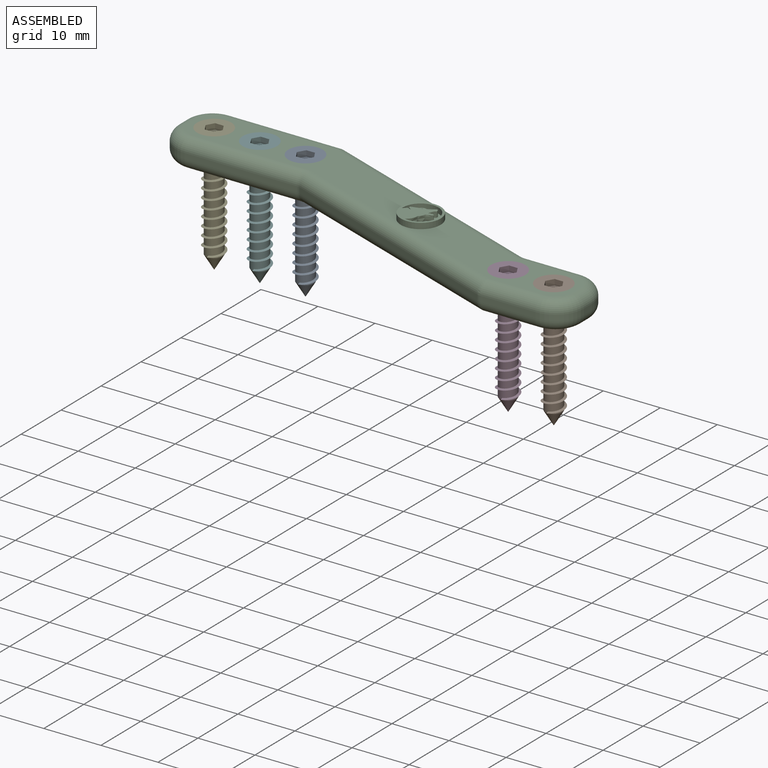
[diagram: assembled view]
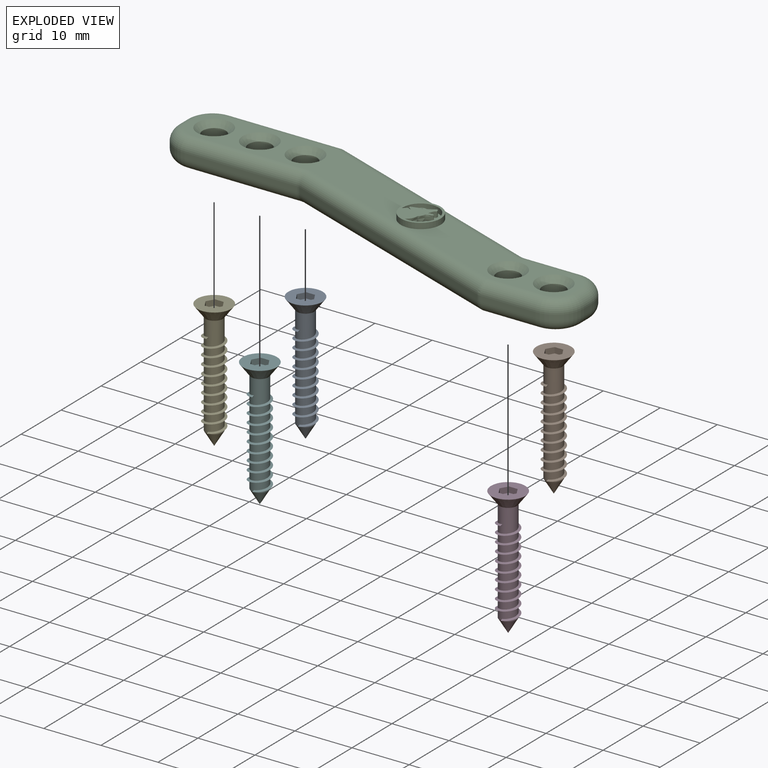
[diagram: exploded view]
GUIDED TOUR — MATED ASSEMBLY (Onshape document 33f1b2299c7d34838d41f400, AutoMate assembly 33f1b2299c7d34838d41f400_60aebbdf857f3bd3de5307ba_5d82a7df3eaacb39e897d084_default)

This assembly has 6 components, labeled P0..P5 below (a component is one placed occurrence of a part; the same part can appear more than once), held together by 5 mates. A mate is a constraint between two components; its type names the relative motion it leaves free:
  SLIDER — leaves translation along the listed axis free.
Axis/direction vectors are unit vectors and 'through' points are millimeter coordinates, both in the assembly's world frame.

MATES
  1. SLIDER "Slider 1": P1 <-> P2, axis (0.000, 0.000, 1.000) through (35.70, -7.64, -9.40) mm
  2. SLIDER "Slider 1": P0 <-> P2, axis (0.000, 0.000, 1.000) through (-18.58, 7.75, -9.40) mm
  3. SLIDER "Slider 1": P3 <-> P2, axis (0.000, 0.000, 1.000) through (27.70, -7.64, -9.40) mm
  4. SLIDER "Slider 1": P4 <-> P2, axis (0.000, 0.000, 1.000) through (-34.58, 7.75, -9.40) mm
  5. SLIDER "Slider 1": P5 <-> P2, axis (0.000, 0.000, 1.000) through (-26.58, 7.75, -9.40) mm

ASSEMBLY ORDER
  1. P2 — the base component [order heuristic]
  2. P0 [order heuristic]
  3. P1 [order heuristic]
  4. P3 [order heuristic]
  5. P4 [order heuristic]
  6. P5 [order heuristic]
Order-tag legend:
  [order heuristic] — this assembly is geometrically interlocked (no collision-free removal order exists), so components are listed in mate-graph order; insertion feasibility is not verified.

Of the 6 components, 1 carries the full construction recipe — the FeatureScript program that regenerates the part's solid from scratch; the rest are supplied as boundary geometry only.
Each toured component is shown spotlighted twice — in the assembled view, then in the exploded view, where a leader line traces a displaced component back to its assembled socket (saturated green if recipe-attached, orange if geometry-only; every other component desaturated gray) — followed by its recipe or geometry summary and the mates that hold it.
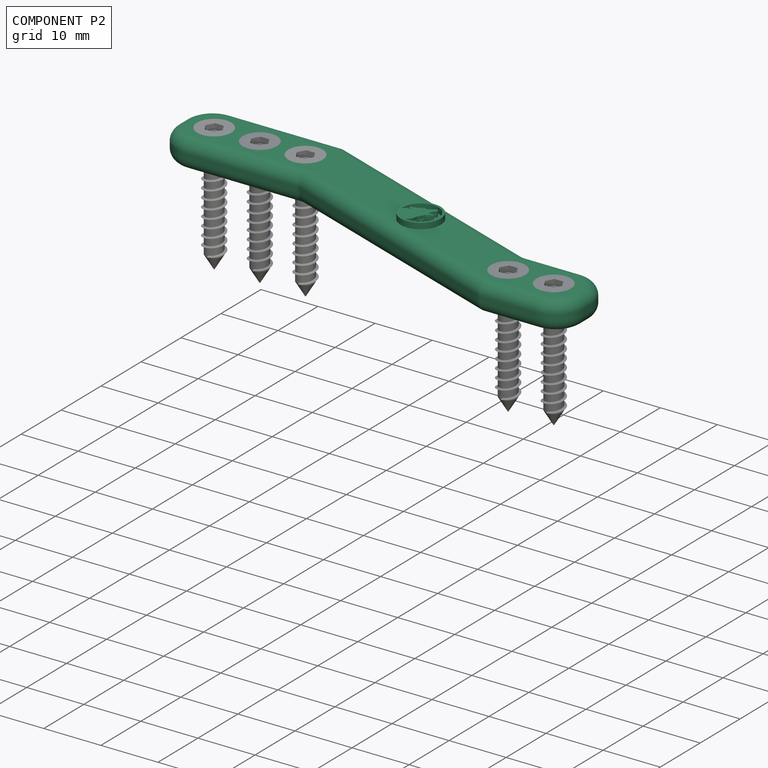
[diagram: component P2 — assembled]
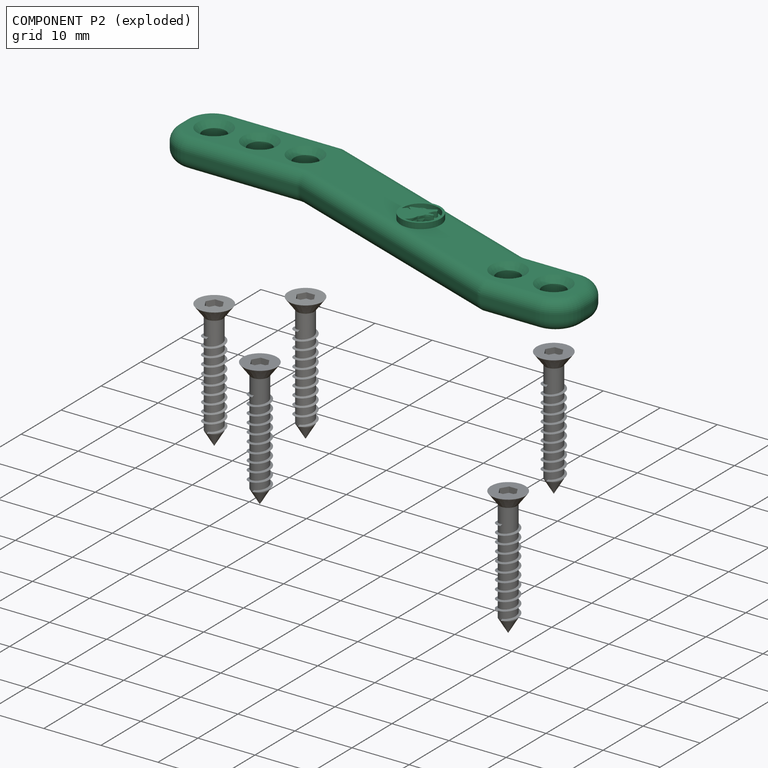
[diagram: component P2 — exploded]
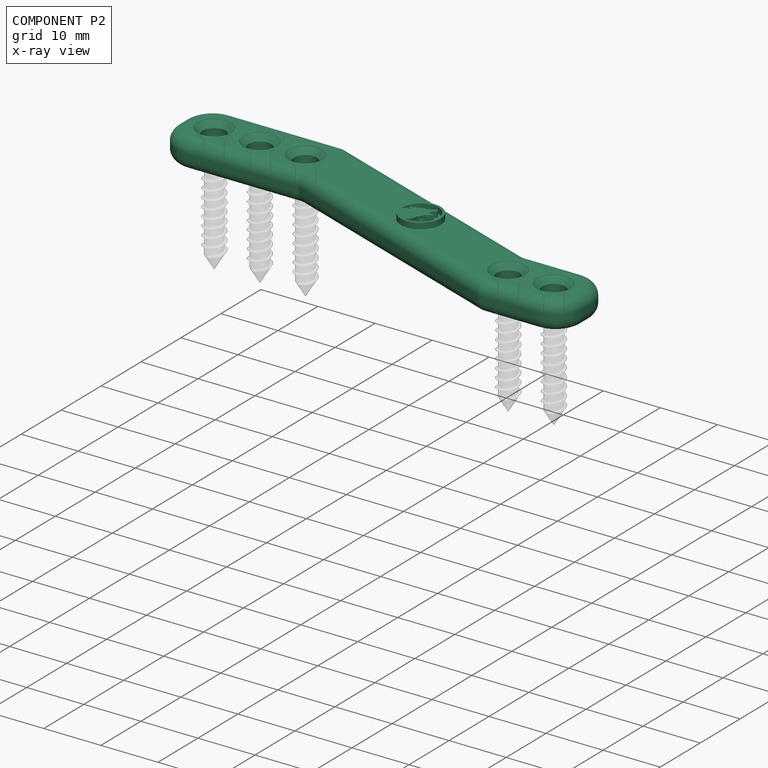
[diagram: component P2 — x-ray view]
COMPONENT P2 — recipe-attached (CADFS 00302835, mesh-verified: the recipe's output STEP matches this component's geometry to below the mesh-comparison resolution (tessellation chordal tolerance ~0.13 mm)).
Held by: SLIDER mate "Slider 1" to P1; SLIDER mate "Slider 1" to P0; SLIDER mate "Slider 1" to P3; SLIDER mate "Slider 1" to P4; SLIDER mate "Slider 1" to P5.
Construction recipe (FeatureScript — the CAD program that rebuilds this solid; sketch coordinates are in the units given by the * unit suffixes, e.g. mm):

FeatureScript 1511;
import(path : "onshape/std/geometry.fs", version : "1511.0");
import(path : "onshape/std/common.fs", version : "1511.0");
const mm = millimeter;
const VERTEX = EntityType.VERTEX;
const EDGE = EntityType.EDGE;
const FACE = EntityType.FACE;
const BODY = EntityType.BODY;
function v(x, y){return vector(x, y);}
function OD(order){return orderDisambiguation(order);}
function OSD(set){return originalSetDisambiguation(set);}
function TD(topology){return topologyDisambiguation(topology);}
function TDD(query){return trueDependencyDisambiguation(query);}
function sQuery(a, b, c) {return sketchEntityQuery(a, b, c);}

annotation { "Feature Type Name" : "Feature", "Feature Type Description" : "" }
export const myFeature = defineFeature(function(context is Context, id is Id, definition is map)
    precondition{}
    {
        {
            var Q0;
            Q0=qCreatedBy(makeId("Top.planeOp"),FACE);
            var sketch = newSketch(context, id + "F0", { "sketchPlane" : qUnion([Q0])});
            skLineSegment(sketch, "E0.bottom", {"start": v(0, 0) * mm, "end": v(25, 0) * mm});
            skLineSegment(sketch, "E0.top", {"start": v(0, 12) * mm, "end": v(25, 12) * mm});
            skLineSegment(sketch, "E0.left", {"start": v(0, 0) * mm, "end": v(0, 12) * mm});
            skLineSegment(sketch, "E0.right", {"start": v(25, 0) * mm, "end": v(25, 12) * mm});
            skLineSegment(sketch, "E1", {"start": v(25, 12) * mm, "end": v(67.29, -3.4) * mm});
            skLineSegment(sketch, "E2.bottom", {"start": v(67.29, -3.4) * mm, "end": v(82.29, -3.4) * mm});
            skLineSegment(sketch, "E2.top", {"start": v(67.29, -15.4) * mm, "end": v(82.29, -15.4) * mm});
            skLineSegment(sketch, "E2.left", {"start": v(67.29, -3.4) * mm, "end": v(67.29, -15.4) * mm});
            skLineSegment(sketch, "E2.right", {"start": v(82.29, -3.4) * mm, "end": v(82.29, -15.4) * mm});
            skLineSegment(sketch, "E3", {"start": v(67.29, -15.4) * mm, "end": v(25, 0) * mm});
            skSolve(sketch);
        }
        {
            var Q0;
            Q0=makeQuery(id+"F0.imprint","IMPRINT",FACE,{"disambiguationData":[TD([[makeQuery(id+"F0.imprint","IMPRINT",EDGE,{"derivedFrom":sQuery(id+"F0.wireOp",EDGE,"E0.bottom")}),1.0]])]});
            var Q1;
            Q1=makeQuery(id+"F0.imprint","IMPRINT",FACE,{"disambiguationData":[TD([[makeQuery(id+"F0.imprint","IMPRINT",EDGE,{"derivedFrom":sQuery(id+"F0.wireOp",EDGE,"E2.bottom")}),-1.0]])]});
            var Q2;
            Q2=makeQuery(id+"F0.imprint","IMPRINT",FACE,{"disambiguationData":[TD([[makeQuery(id+"F0.imprint","IMPRINT",EDGE,{"derivedFrom":sQuery(id+"F0.wireOp",EDGE,"E0.right")}),-1.0]])]});
            extrude(context, id + "F1", {"entities" : qUnion([Q0, Q1, Q2]), "depth" : 5 * mm});
        }
        {
            var Q0;
            Q0=makeQuery(id+"F1.opExtrude","CAP_FACE",FACE,{"disambiguationData":[OSD([sQuery(id+"F0.wireOp",EDGE,"E0.bottom"),sQuery(id+"F0.wireOp",EDGE,"E0.top"),sQuery(id+"F0.wireOp",EDGE,"E0.left"),sQuery(id+"F0.wireOp",EDGE,"E1"),sQuery(id+"F0.wireOp",EDGE,"E2.bottom"),sQuery(id+"F0.wireOp",EDGE,"E2.top"),sQuery(id+"F0.wireOp",EDGE,"E2.right"),sQuery(id+"F0.wireOp",EDGE,"E3")])],"isStart":false});
            var sketch = newSketch(context, id + "F2", { "sketchPlane" : qUnion([Q0])});
            skCircle(sketch, "E4", {"center": v(6, 6) * mm, "radius": 2 * mm});
            skPoint(sketch, "E4.centerSnap0", {"position": v(0, 6) * mm});
            skCircle(sketch, "E5", {"center": v(76.29, -9.4) * mm, "radius": 2 * mm});
            skPoint(sketch, "E5.centerSnap0", {"position": v(82.29, -9.4) * mm});
            skCircle(sketch, "E6.1.0.0", {"center": v(14, 6) * mm, "radius": 2 * mm});
            skCircle(sketch, "E6.2.0.0", {"center": v(22, 6) * mm, "radius": 2 * mm});
            skLineSegment(sketch, "E6.direction1", {"start": v(6, 6) * mm, "end": v(14, 6) * mm, "construction": true});
            skCircle(sketch, "E7.1.0.0", {"center": v(68.29, -9.4) * mm, "radius": 2 * mm});
            skLineSegment(sketch, "E7.direction1", {"start": v(76.29, -9.4) * mm, "end": v(68.29, -9.4) * mm, "construction": true});
            skSolve(sketch);
        }
        {
            var Q0;
            Q0=makeQuery(id+"F2.imprint","IMPRINT",FACE,{"disambiguationData":[TD([[makeQuery(id+"F2.imprint","IMPRINT",EDGE,{"derivedFrom":sQuery(id+"F2.wireOp",EDGE,"E4")}),1.0]])]});
            var Q1;
            Q1=makeQuery(id+"F2.imprint","IMPRINT",FACE,{"disambiguationData":[TD([[makeQuery(id+"F2.imprint","IMPRINT",EDGE,{"derivedFrom":sQuery(id+"F2.wireOp",EDGE,"E6.1.0.0")}),1.0]])]});
            var Q2;
            Q2=makeQuery(id+"F2.imprint","IMPRINT",FACE,{"disambiguationData":[TD([[makeQuery(id+"F2.imprint","IMPRINT",EDGE,{"derivedFrom":sQuery(id+"F2.wireOp",EDGE,"E6.2.0.0")}),1.0]])]});
            var Q3;
            Q3=makeQuery(id+"F2.imprint","IMPRINT",FACE,{"disambiguationData":[TD([[makeQuery(id+"F2.imprint","IMPRINT",EDGE,{"derivedFrom":sQuery(id+"F2.wireOp",EDGE,"E7.1.0.0")}),1.0]])]});
            var Q4;
            Q4=makeQuery(id+"F2.imprint","IMPRINT",FACE,{"disambiguationData":[TD([[makeQuery(id+"F2.imprint","IMPRINT",EDGE,{"derivedFrom":sQuery(id+"F2.wireOp",EDGE,"E5")}),1.0]])]});
            extrude(context, id + "F3", {"entities" : qUnion([Q0, Q1, Q2, Q3, Q4]), "operationType" : NewBodyOperationType.REMOVE, "endBound" : BoundingType.THROUGH_ALL, "oppositeDirection" : true, "depth" : 25 * mm});
        }
        {
            var Q0;
            Q0=makeQuery(id+"F1.opExtrude","CAP_EDGE",EDGE,{"disambiguationData":[OSD([sQuery(id+"F0.wireOp",EDGE,"E0.top")])],"isStart":false});
            var Q1;
            Q1=makeQuery(id+"F1.opExtrude","CAP_EDGE",EDGE,{"disambiguationData":[OSD([sQuery(id+"F0.wireOp",EDGE,"E0.top")])],"isStart":true});
            var Q2;
            Q2=makeQuery(id+"F1.opExtrude","CAP_EDGE",EDGE,{"disambiguationData":[OSD([sQuery(id+"F0.wireOp",EDGE,"E0.left")])],"isStart":false});
            var Q3;
            Q3=makeQuery(id+"F1.opExtrude","CAP_EDGE",EDGE,{"disambiguationData":[OSD([sQuery(id+"F0.wireOp",EDGE,"E0.left")])],"isStart":true});
            var Q4;
            Q4=makeQuery(id+"F1.opExtrude","CAP_EDGE",EDGE,{"disambiguationData":[OSD([sQuery(id+"F0.wireOp",EDGE,"E0.bottom")])],"isStart":false});
            var Q5;
            Q5=makeQuery(id+"F1.opExtrude","CAP_EDGE",EDGE,{"disambiguationData":[OSD([sQuery(id+"F0.wireOp",EDGE,"E0.bottom")])],"isStart":true});
            var Q6;
            Q6=makeQuery(id+"F1.opExtrude","CAP_EDGE",EDGE,{"disambiguationData":[OSD([sQuery(id+"F0.wireOp",EDGE,"E3")])],"isStart":false});
            var Q7;
            Q7=makeQuery(id+"F1.opExtrude","CAP_EDGE",EDGE,{"disambiguationData":[OSD([sQuery(id+"F0.wireOp",EDGE,"E2.top")])],"isStart":false});
            var Q8;
            Q8=makeQuery(id+"F1.opExtrude","CAP_EDGE",EDGE,{"disambiguationData":[OSD([sQuery(id+"F0.wireOp",EDGE,"E3")])],"isStart":true});
            var Q9;
            Q9=makeQuery(id+"F1.opExtrude","CAP_EDGE",EDGE,{"disambiguationData":[OSD([sQuery(id+"F0.wireOp",EDGE,"E2.top")])],"isStart":true});
            var Q10;
            Q10=makeQuery(id+"F1.opExtrude","CAP_EDGE",EDGE,{"disambiguationData":[OSD([sQuery(id+"F0.wireOp",EDGE,"E2.right")])],"isStart":false});
            var Q11;
            Q11=makeQuery(id+"F1.opExtrude","CAP_EDGE",EDGE,{"disambiguationData":[OSD([sQuery(id+"F0.wireOp",EDGE,"E2.right")])],"isStart":true});
            var Q12;
            Q12=makeQuery(id+"F1.opExtrude","CAP_EDGE",EDGE,{"disambiguationData":[OSD([sQuery(id+"F0.wireOp",EDGE,"E2.bottom")])],"isStart":true});
            var Q13;
            Q13=makeQuery(id+"F1.opExtrude","CAP_EDGE",EDGE,{"disambiguationData":[OSD([sQuery(id+"F0.wireOp",EDGE,"E2.bottom")])],"isStart":false});
            var Q14;
            Q14=makeQuery(id+"F1.opExtrude","CAP_EDGE",EDGE,{"disambiguationData":[OSD([sQuery(id+"F0.wireOp",EDGE,"E1")])],"isStart":false});
            var Q15;
            Q15=makeQuery(id+"F1.opExtrude","CAP_EDGE",EDGE,{"disambiguationData":[OSD([sQuery(id+"F0.wireOp",EDGE,"E1")])],"isStart":true});
            var Q16;
            Q16=makeQuery(id+"F1.opExtrude","SWEPT_EDGE",EDGE,{"disambiguationData":[OSD([sQuery(id+"F0.wireOp",EDGE,"E0.top"),sQuery(id+"F0.wireOp",EDGE,"E0.right"),sQuery(id+"F0.wireOp",EDGE,"E1")])]});
            var Q17;
            Q17=makeQuery(id+"F1.opExtrude","SWEPT_EDGE",EDGE,{"disambiguationData":[OSD([sQuery(id+"F0.wireOp",EDGE,"E1"),sQuery(id+"F0.wireOp",EDGE,"E2.bottom"),sQuery(id+"F0.wireOp",EDGE,"E2.left")])]});
            var Q18;
            Q18=makeQuery(id+"F1.opExtrude","SWEPT_EDGE",EDGE,{"disambiguationData":[OSD([sQuery(id+"F0.wireOp",EDGE,"E2.top"),sQuery(id+"F0.wireOp",EDGE,"E2.left"),sQuery(id+"F0.wireOp",EDGE,"E3")])]});
            var Q19;
            Q19=makeQuery(id+"F1.opExtrude","SWEPT_EDGE",EDGE,{"disambiguationData":[OSD([sQuery(id+"F0.wireOp",EDGE,"E0.bottom"),sQuery(id+"F0.wireOp",EDGE,"E0.right"),sQuery(id+"F0.wireOp",EDGE,"E3")])]});
            fillet(context, id + "F4", {"entities" : qUnion([Q0, Q1, Q2, Q3, Q4, Q5, Q6, Q7, Q8, Q9, Q10, Q11, Q12, Q13, Q14, Q15, Q16, Q17, Q18, Q19]), "radius" : 2 * mm, "tangentPropagation" : true, "allowEdgeOverflow" : false});
        }
        {
            var Q0;
            Q0=makeQuery(id+"F1.opExtrude","SWEPT_EDGE",EDGE,{"disambiguationData":[OSD([sQuery(id+"F0.wireOp",EDGE,"E0.bottom"),sQuery(id+"F0.wireOp",EDGE,"E0.left")])]});
            var Q1;
            Q1=makeQuery(id+"F4.opFillet","BLEND_EDGE",EDGE,{"blendedFrom":[makeQuery(id+"F1.opExtrude","CAP_EDGE",EDGE,{"disambiguationData":[OSD([sQuery(id+"F0.wireOp",EDGE,"E0.bottom")])],"isStart":false}),makeQuery(id+"F1.opExtrude","CAP_EDGE",EDGE,{"disambiguationData":[OSD([sQuery(id+"F0.wireOp",EDGE,"E0.left")])],"isStart":false})],"blendedInto":[]});
            var Q2;
            Q2=makeQuery(id+"F4.opFillet","BLEND_EDGE",EDGE,{"blendedFrom":[makeQuery(id+"F1.opExtrude","CAP_EDGE",EDGE,{"disambiguationData":[OSD([sQuery(id+"F0.wireOp",EDGE,"E0.bottom")])],"isStart":true}),makeQuery(id+"F1.opExtrude","CAP_EDGE",EDGE,{"disambiguationData":[OSD([sQuery(id+"F0.wireOp",EDGE,"E0.left")])],"isStart":true})],"blendedInto":[]});
            var Q3;
            Q3=makeQuery(id+"F4.opFillet","BLEND_EDGE",EDGE,{"blendedFrom":[makeQuery(id+"F1.opExtrude","CAP_EDGE",EDGE,{"disambiguationData":[OSD([sQuery(id+"F0.wireOp",EDGE,"E0.top")])],"isStart":false}),makeQuery(id+"F1.opExtrude","CAP_EDGE",EDGE,{"disambiguationData":[OSD([sQuery(id+"F0.wireOp",EDGE,"E0.left")])],"isStart":false})],"blendedInto":[]});
            var Q4;
            Q4=makeQuery(id+"F4.opFillet","BLEND_EDGE",EDGE,{"blendedFrom":[makeQuery(id+"F1.opExtrude","CAP_EDGE",EDGE,{"disambiguationData":[OSD([sQuery(id+"F0.wireOp",EDGE,"E2.bottom")])],"isStart":false}),makeQuery(id+"F1.opExtrude","CAP_EDGE",EDGE,{"disambiguationData":[OSD([sQuery(id+"F0.wireOp",EDGE,"E2.right")])],"isStart":false})],"blendedInto":[]});
            var Q5;
            Q5=makeQuery(id+"F4.opFillet","BLEND_EDGE",EDGE,{"blendedFrom":[makeQuery(id+"F1.opExtrude","CAP_EDGE",EDGE,{"disambiguationData":[OSD([sQuery(id+"F0.wireOp",EDGE,"E2.top")])],"isStart":false}),makeQuery(id+"F1.opExtrude","CAP_EDGE",EDGE,{"disambiguationData":[OSD([sQuery(id+"F0.wireOp",EDGE,"E2.right")])],"isStart":false})],"blendedInto":[]});
            fillet(context, id + "F5", {"entities" : qUnion([Q0, Q1, Q2, Q3, Q4, Q5]), "radius" : 5 * mm, "tangentPropagation" : true, "allowEdgeOverflow" : false});
        }
        {
            var Q0;
            Q0=makeQuery(id+"F1.opExtrude","CAP_FACE",FACE,{"disambiguationData":[OSD([sQuery(id+"F0.wireOp",EDGE,"E0.bottom"),sQuery(id+"F0.wireOp",EDGE,"E0.top"),sQuery(id+"F0.wireOp",EDGE,"E0.left"),sQuery(id+"F0.wireOp",EDGE,"E1"),sQuery(id+"F0.wireOp",EDGE,"E2.bottom"),sQuery(id+"F0.wireOp",EDGE,"E2.top"),sQuery(id+"F0.wireOp",EDGE,"E2.right"),sQuery(id+"F0.wireOp",EDGE,"E3")])],"isStart":false});
            chamfer(context, id + "F6", {"entities" : qUnion([Q0]), "width" : 1 * mm, "tangentPropagation" : true});
        }
        {
            var Q0;
            Q0=makeQuery(id+"F1.opExtrude","CAP_FACE",FACE,{"disambiguationData":[OSD([sQuery(id+"F0.wireOp",EDGE,"E0.bottom"),sQuery(id+"F0.wireOp",EDGE,"E0.top"),sQuery(id+"F0.wireOp",EDGE,"E0.left"),sQuery(id+"F0.wireOp",EDGE,"E1"),sQuery(id+"F0.wireOp",EDGE,"E2.bottom"),sQuery(id+"F0.wireOp",EDGE,"E2.top"),sQuery(id+"F0.wireOp",EDGE,"E2.right"),sQuery(id+"F0.wireOp",EDGE,"E3")])],"isStart":false});
            var sketch = newSketch(context, id + "F7", { "sketchPlane" : qUnion([Q0])});
            skLineSegment(sketch, "E8", {"start": v(46.83, -5.82) * mm, "end": v(48.07, -2.4) * mm});
            skCircle(sketch, "E9", {"center": v(48.07, -2.4) * mm, "radius": 3.5 * mm});
            skCircle(sketch, "E10.0", {"center": v(48.07, -2.4) * mm, "radius": 3.1 * mm});
            skFitSpline(sketch, "E11", {"points": [v(47.43, -5.43) * mm, v(48.01, -4.83) * mm, v(48.38, -4.04) * mm, v(48.4, -3.62) * mm, v(48.78, -3.22) * mm, v(49.01, -2.61) * mm, v(49.83, -2.3) * mm, v(50.12, -2.06) * mm, v(49.94, -1.88) * mm, v(49.6, -1.86) * mm, v(49.48, -1.9) * mm, v(49.38, -1.84) * mm, v(49.3, -1.88) * mm, v(49.08, -1.88) * mm, v(49.58, -0.86) * mm, v(49.6, -0.89) * mm, v(49.66, -0.84) * mm, v(49.68, -0.74) * mm, v(49.75, -0.62) * mm, v(49.68, -0.41) * mm, v(49.52, -0.18) * mm, v(49.37, -0.19) * mm, v(48.1, -0.93) * mm, v(48, -0.9) * mm, v(47.67, -0.85) * mm, v(47.38, -0.92) * mm, v(47.12, -1.1) * mm, v(47.07, -1.16) * mm, v(45.6, -1.63) * mm, v(45.61, -1.66) * mm, v(45.68, -1.8) * mm, v(45.76, -2) * mm, v(45.94, -2.1) * mm, v(46.23, -2.29) * mm, v(45.95, -2.26) * mm, v(45.82, -2.16) * mm, v(45.62, -2.13) * mm, v(45.35, -2.35) * mm, v(45.1, -2.55) * mm, v(44.98, -2.64) * mm], "startDerivative": vector(14.17, 12.65) * mm, "endDerivative": vector(-6.5, -4.2) * mm});
            skFitSpline(sketch, "E12", {"points": [v(47.32, -1.3) * mm, v(47.33, -1.28) * mm, v(47.44, -1.2) * mm, v(47.62, -1.13) * mm, v(47.71, -1.15) * mm, v(47.63, -1.19) * mm, v(47.54, -1.22) * mm, v(47.43, -1.27) * mm, v(47.32, -1.3) * mm]});
            skSolve(sketch);
        }
        {
            var Q0;
            Q0=makeQuery(id+"F7.imprint","IMPRINT",FACE,{"disambiguationData":[TD([[makeQuery(id+"F7.imprint","IMPRINT",EDGE,{"derivedFrom":sQuery(id+"F7.wireOp",EDGE,"E9")}),1.0]])]});
            var Q1;
            {var subQ0=sQuery(id+"F7.wireOp",EDGE,"E11");Q1=makeQuery(id+"F7.imprint","IMPRINT",FACE,{"disambiguationData":[TD([[makeQuery(id+"F7.imprint","IMPRINT",EDGE,{"derivedFrom":subQ0}),1.0]])]});}
            extrude(context, id + "F8", {"entities" : qUnion([Q0, Q1]), "operationType" : NewBodyOperationType.ADD, "depth" : 1 * mm});
        }
    });
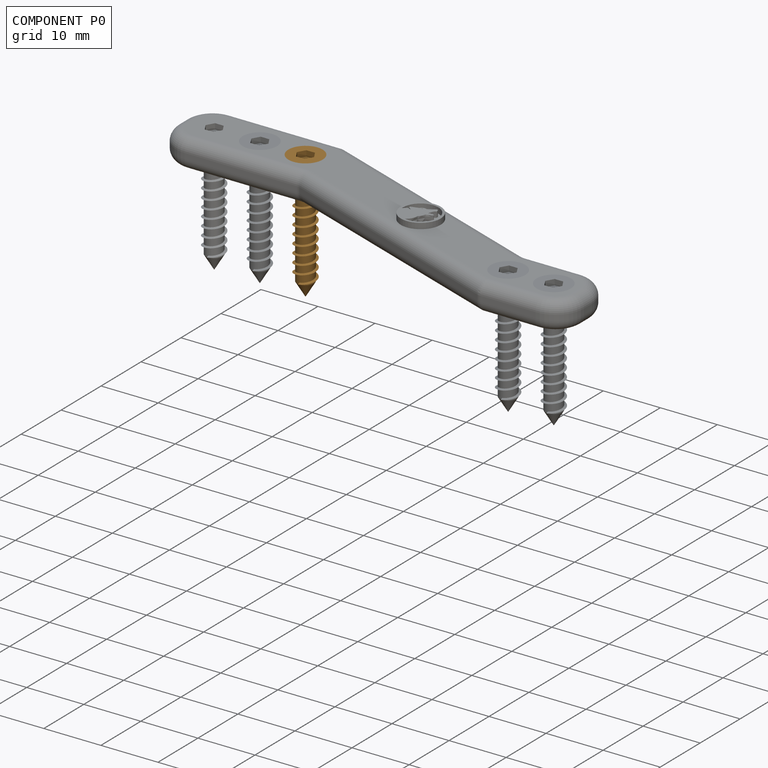
[diagram: component P0 — assembled]
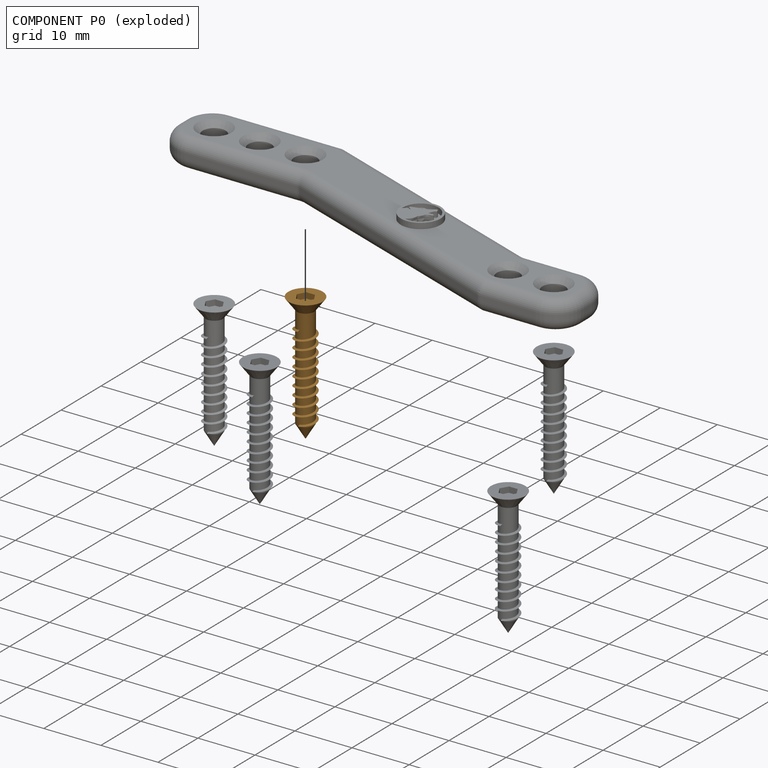
[diagram: component P0 — exploded]
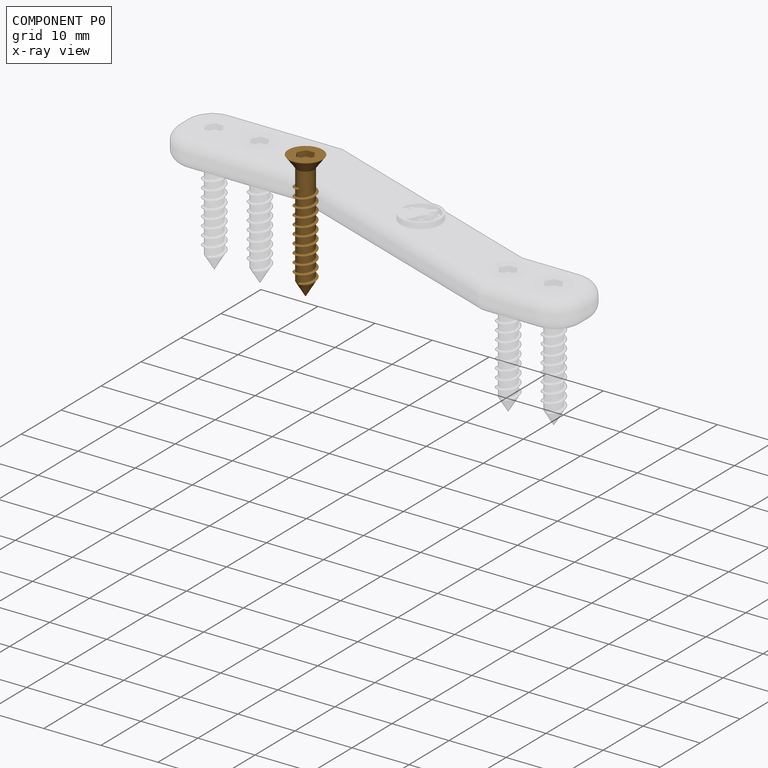
[diagram: component P0 — x-ray view]
COMPONENT P0 — geometry summary (no construction recipe available for this part):
  bounding box: 22.5 x 6.0 x 6.0 mm
  B-rep topology: 1 solid, 25 faces, 125 edges
  volume: 166 mm^3 (21% of its bounding box)
Held by: SLIDER mate "Slider 1" to P2.
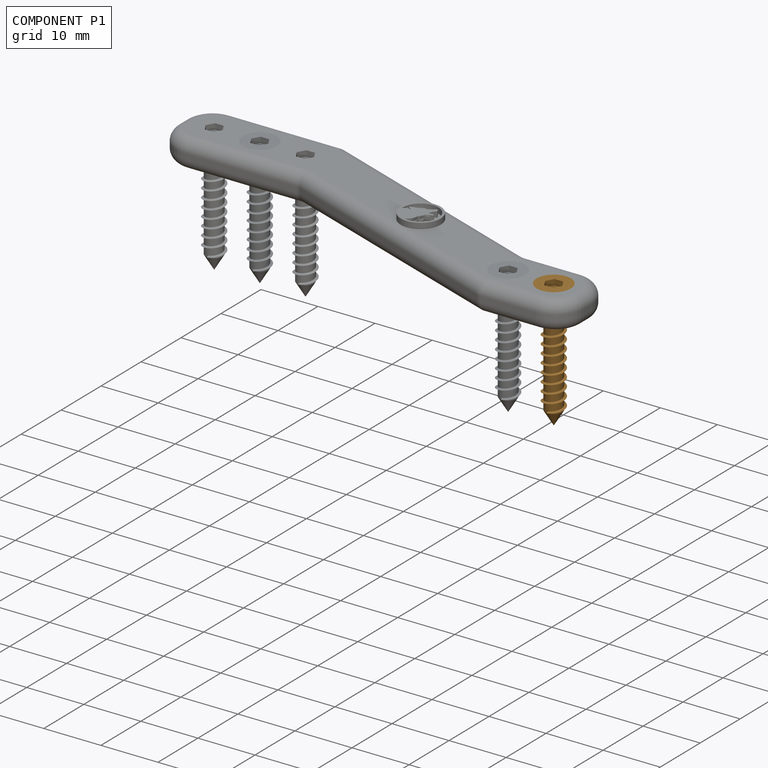
[diagram: component P1 — assembled]
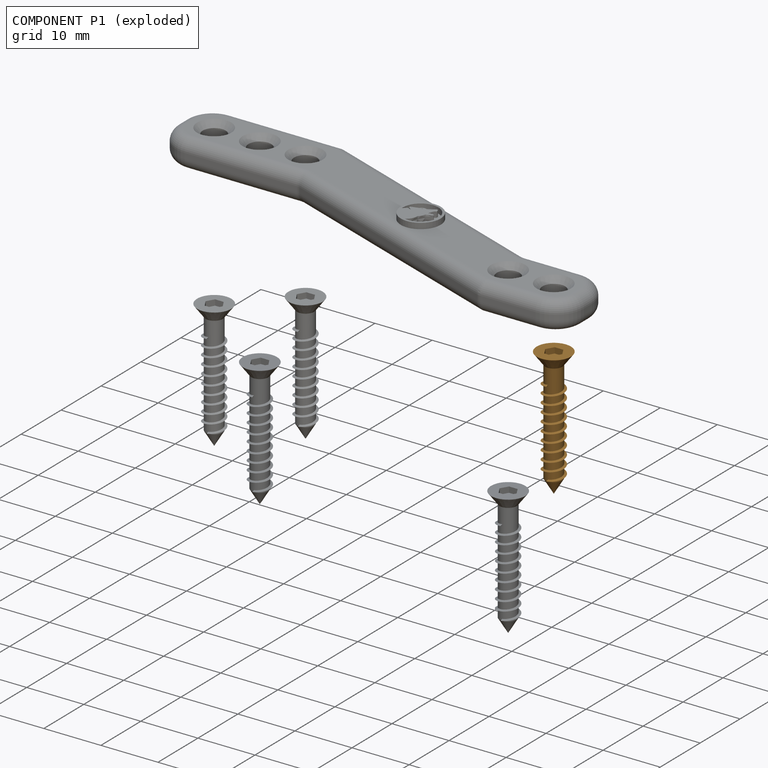
[diagram: component P1 — exploded]
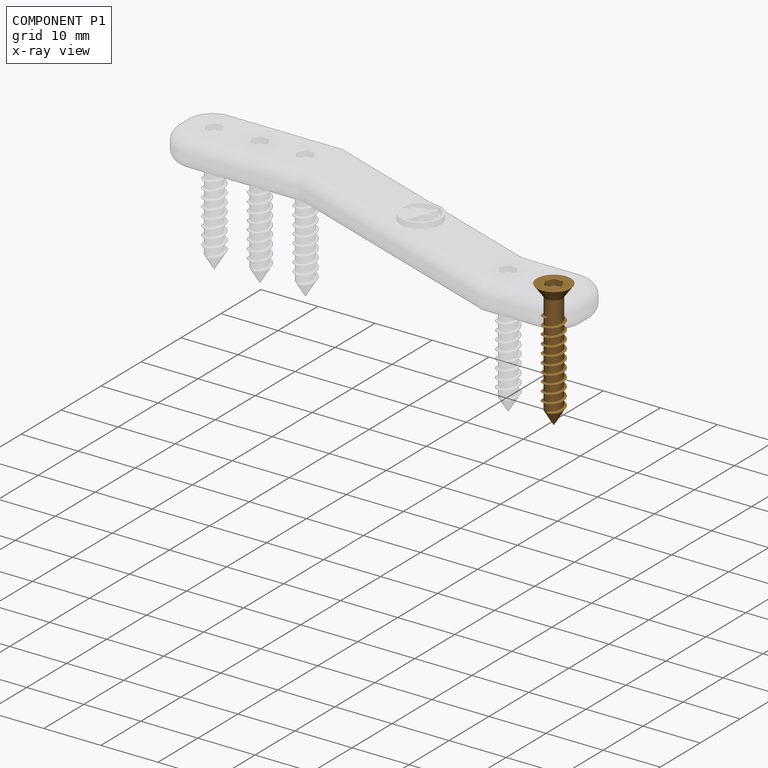
[diagram: component P1 — x-ray view]
COMPONENT P1 — geometry summary (no construction recipe available for this part):
  bounding box: 22.5 x 6.0 x 6.0 mm
  B-rep topology: 1 solid, 25 faces, 125 edges
  volume: 166 mm^3 (21% of its bounding box)
Held by: SLIDER mate "Slider 1" to P2.
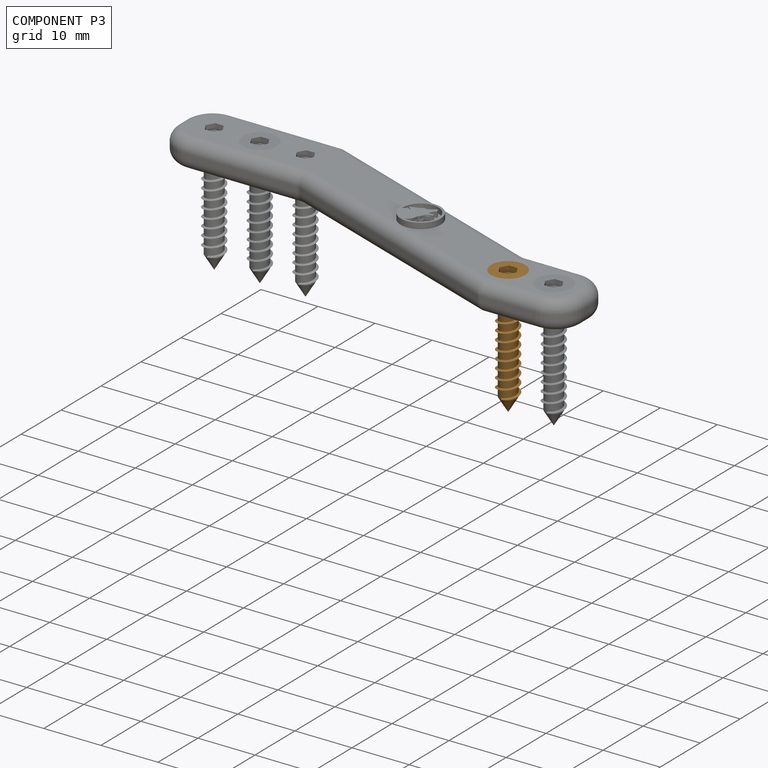
[diagram: component P3 — assembled]
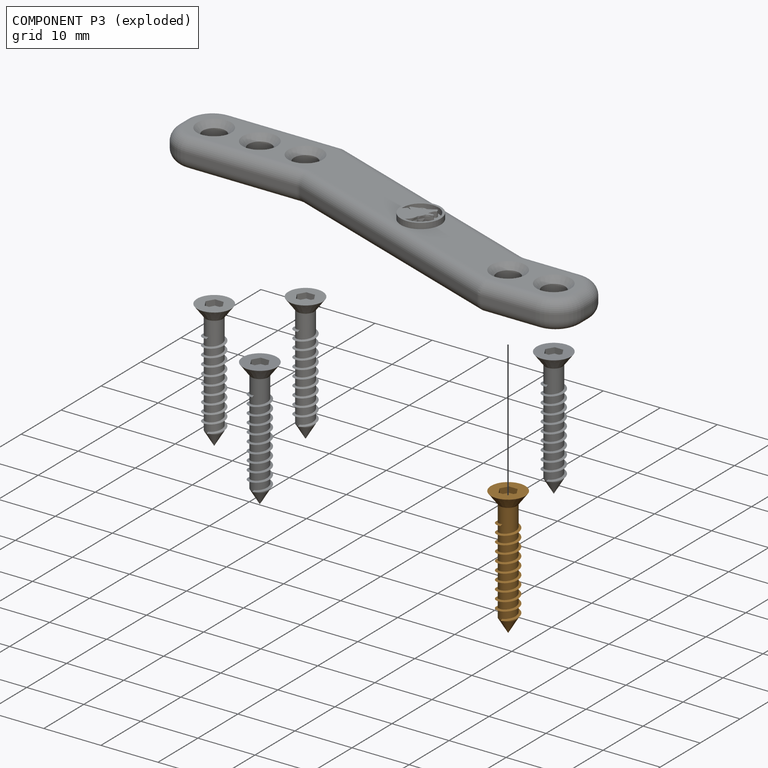
[diagram: component P3 — exploded]
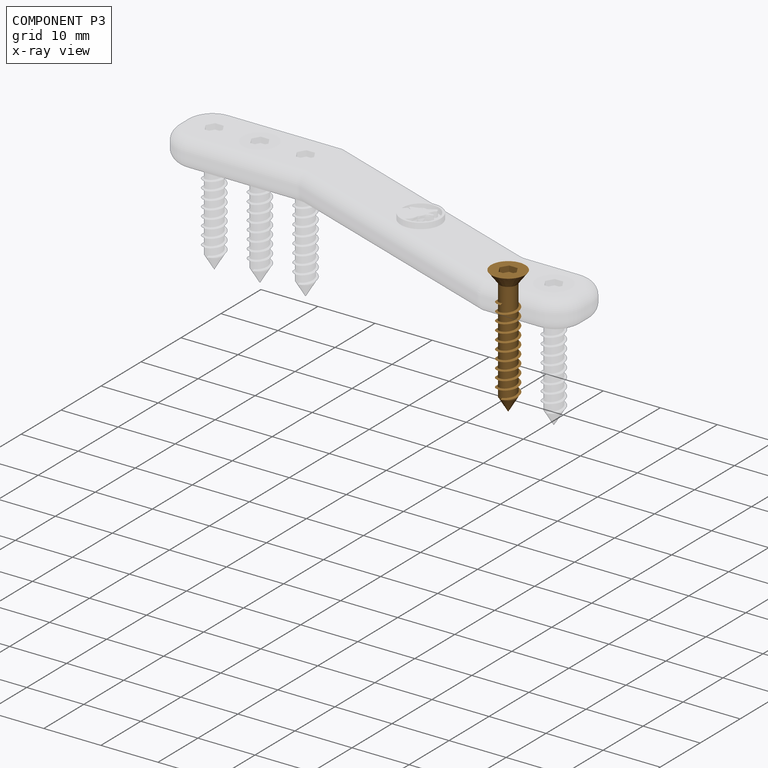
[diagram: component P3 — x-ray view]
COMPONENT P3 — geometry summary (no construction recipe available for this part):
  bounding box: 22.5 x 6.0 x 6.0 mm
  B-rep topology: 1 solid, 25 faces, 125 edges
  volume: 166 mm^3 (21% of its bounding box)
Held by: SLIDER mate "Slider 1" to P2.
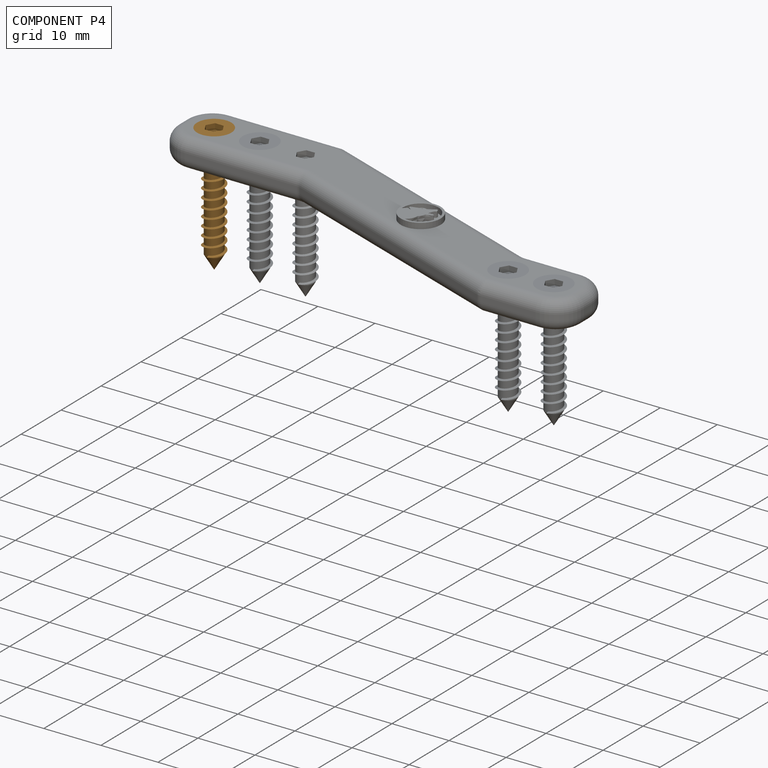
[diagram: component P4 — assembled]
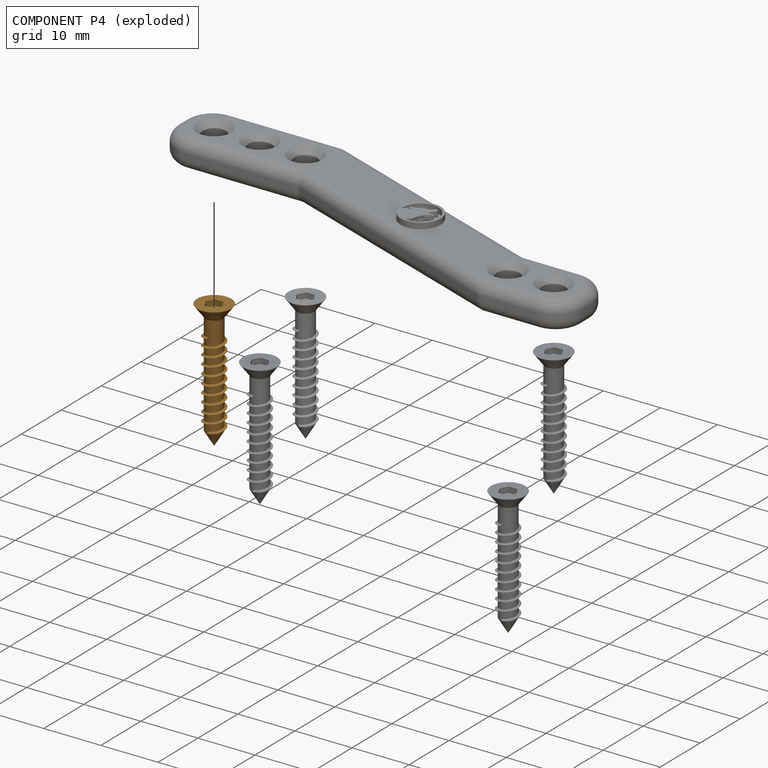
[diagram: component P4 — exploded]
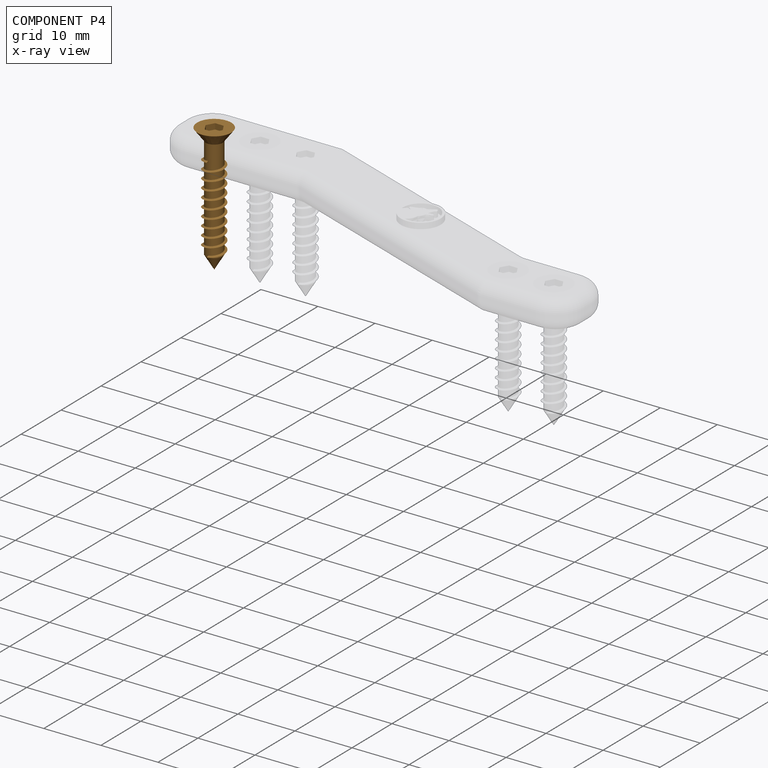
[diagram: component P4 — x-ray view]
COMPONENT P4 — geometry summary (no construction recipe available for this part):
  bounding box: 22.5 x 6.0 x 6.0 mm
  B-rep topology: 1 solid, 25 faces, 125 edges
  volume: 166 mm^3 (21% of its bounding box)
Held by: SLIDER mate "Slider 1" to P2.
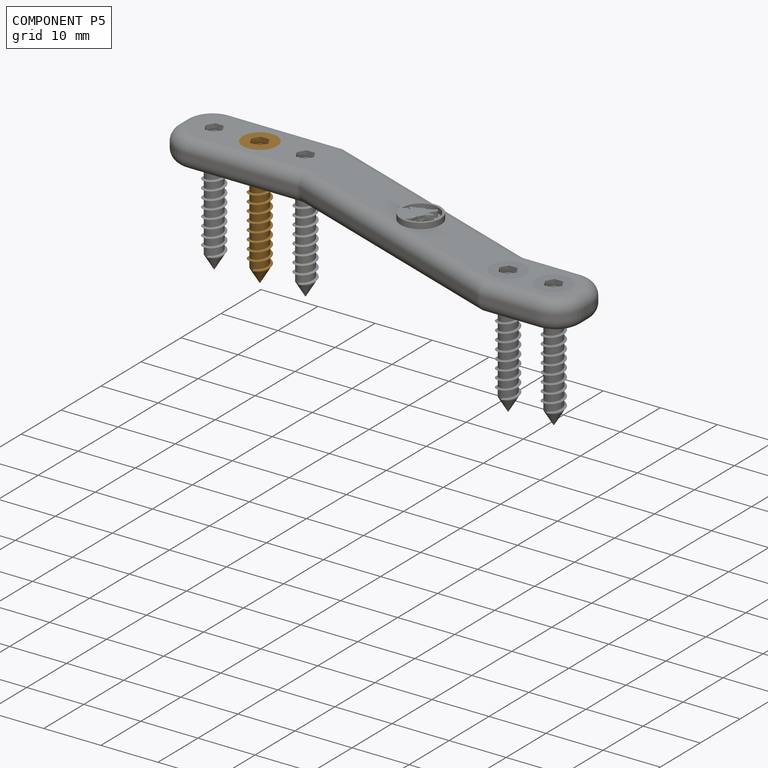
[diagram: component P5 — assembled]
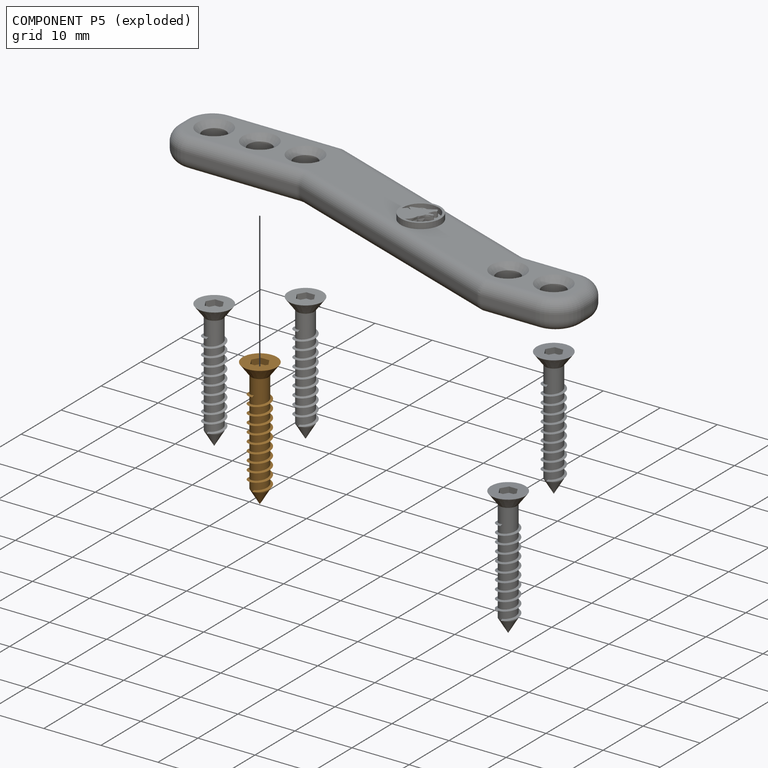
[diagram: component P5 — exploded]
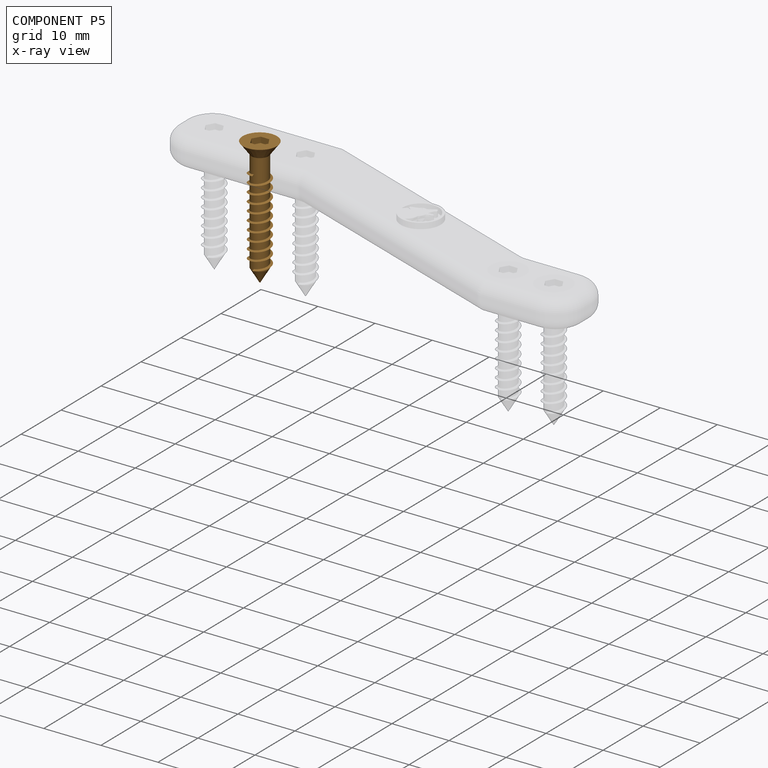
[diagram: component P5 — x-ray view]
COMPONENT P5 — geometry summary (no construction recipe available for this part):
  bounding box: 22.5 x 6.0 x 6.0 mm
  B-rep topology: 1 solid, 25 faces, 125 edges
  volume: 166 mm^3 (21% of its bounding box)
Held by: SLIDER mate "Slider 1" to P2.
PROVENANCE & LICENSES
Assembly (occurrences, transforms, mates, per-part STEP geometry): AutoMate dataset, Zenodo record 7776208, CC0.
Construction recipes: CADFS (HuggingFace VladPyatov/CADFS, CC-BY-4.0, layered over the ABC dataset), FeatureScript reconstruction programs keyed by ABC model id.
Join: ABC meta listings map ABC model id -> Onshape documentId; within a shared document, parts are matched by geometric signature (bounding-box dims + volume at 0.1% relative tolerance, exact B-rep face/solid counts).
Verification: 1 of this assembly's 6 components carries a recipe attachment, and every attachment is mesh-verified: the CADFS STEP and the AutoMate member STEP were compared as meshes in their shared local frame (symmetric sampled-point-to-mesh distance); worst across the 1 attachment: below the mesh-comparison resolution (tessellation chordal tolerance ~0.13 mm) on a 87 mm part.
Renders: orthographic iso camera (az 35 / el 25); the floor grid conveys scale (grid pitch printed in each image; no ruler). In the exploded view each component is displaced by its stored offset vector: the offsets alone carry the explosion direction (mate normal/axis signs are not orientation cues and do not encode it), and separation distances are assigned per mate-chain, not proportionally to assembly-order depth.
